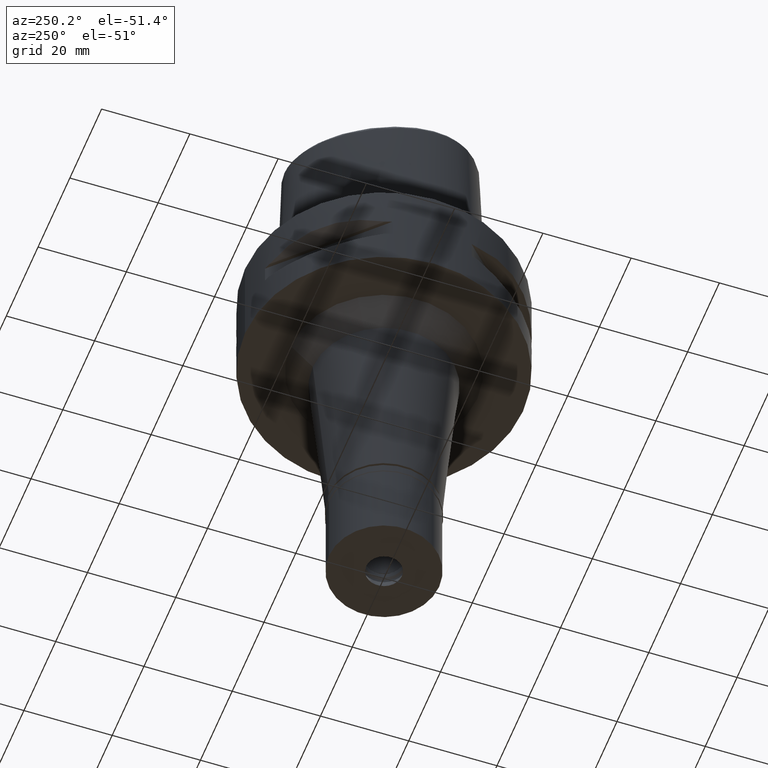
[diagram: clean part render]
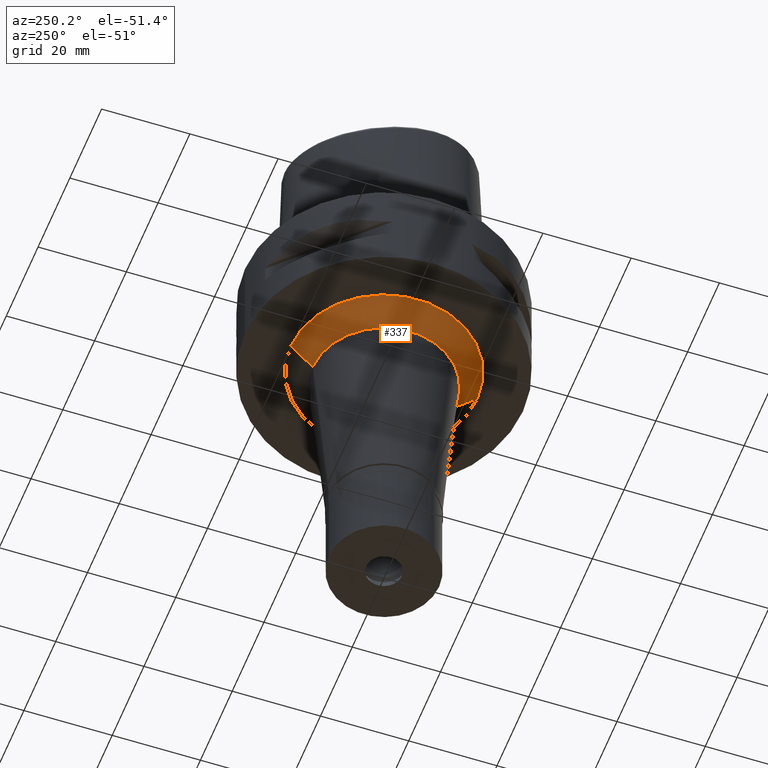
[diagram: same view with one face highlighted and labeled with its STEP entity id]
A machine part, auxiliary view. The second image highlights one B-rep face of the part: STEP entity #337.
In plain terms, the highlighted conical surface has half-angle 45 deg.
Its self-contained STEP definition (entity closure, byte-faithful):
#39 = DIRECTION ( 'NONE',  ( 0.0000000000000000000, 0.0000000000000000000, -1.000000000000000000 ) ) ;
#135 = CARTESIAN_POINT ( 'NONE',  ( 0.0000000000000000000, 0.0000000000000000000, -24.50000000000000000 ) ) ;
#162 = CARTESIAN_POINT ( 'NONE',  ( 0.0000000000000000000, 21.14827726903000027, -22.00000000000000000 ) ) ;
#181 = FACE_OUTER_BOUND ( 'NONE', #4765, .T. ) ;
#337 = ADVANCED_FACE ( 'NONE', ( #181 ), #556, .T. ) ;
#394 = ORIENTED_EDGE ( 'NONE', *, *, #1253, .T. ) ;
#435 = ORIENTED_EDGE ( 'NONE', *, *, #2027, .T. ) ;
#556 = CONICAL_SURFACE ( 'NONE', #3413, 18.64827726902999672, 0.7853981633972997312 ) ;
#855 = CARTESIAN_POINT ( 'NONE',  ( 0.0000000000000000000, 16.14827726903000027, -27.00000000000000000 ) ) ;
#885 = DIRECTION ( 'NONE',  ( 0.0000000000000000000, 0.7071067811862974395, -0.7071067811867974839 ) ) ;
#994 = AXIS2_PLACEMENT_3D ( 'NONE', #2402, #39, #3953 ) ;
#1103 = CIRCLE ( 'NONE', #2568, 16.14827726903000027 ) ;
#1253 = EDGE_CURVE ( 'NONE', #2762, #3133, #3779, .T. ) ;
#1722 = VECTOR ( 'NONE', #3427, 1000.000000000000114 ) ;
#1738 = DIRECTION ( 'NONE',  ( 0.0000000000000000000, 0.0000000000000000000, 1.000000000000000000 ) ) ;
#1875 = LINE ( 'NONE', #3128, #1722 ) ;
#2027 = EDGE_CURVE ( 'NONE', #3133, #2750, #1875, .T. ) ;
#2066 = DIRECTION ( 'NONE',  ( 0.0000000000000000000, 1.000000000000000000, 0.0000000000000000000 ) ) ;
#2189 = VERTEX_POINT ( 'NONE', #4206 ) ;
#2402 = CARTESIAN_POINT ( 'NONE',  ( 0.0000000000000000000, 0.0000000000000000000, -22.00000000000000000 ) ) ;
#2419 = CARTESIAN_POINT ( 'NONE',  ( 0.0000000000000000000, -21.14827726903000027, -22.00000000000000000 ) ) ;
#2442 = CARTESIAN_POINT ( 'NONE',  ( 0.0000000000000000000, -21.14827726903000027, -22.00000000000000000 ) ) ;
#2568 = AXIS2_PLACEMENT_3D ( 'NONE', #3077, #3858, #2998 ) ;
#2750 = VERTEX_POINT ( 'NONE', #855 ) ;
#2755 = EDGE_CURVE ( 'NONE', #2762, #2189, #3662, .T. ) ;
#2762 = VERTEX_POINT ( 'NONE', #2442 ) ;
#2998 = DIRECTION ( 'NONE',  ( 0.0000000000000000000, -1.000000000000000000, 0.0000000000000000000 ) ) ;
#3077 = CARTESIAN_POINT ( 'NONE',  ( 0.0000000000000000000, 0.0000000000000000000, -27.00000000000000000 ) ) ;
#3128 = CARTESIAN_POINT ( 'NONE',  ( 0.0000000000000000000, 21.14827726903000027, -22.00000000000000000 ) ) ;
#3133 = VERTEX_POINT ( 'NONE', #162 ) ;
#3353 = ORIENTED_EDGE ( 'NONE', *, *, #2755, .F. ) ;
#3377 = VECTOR ( 'NONE', #885, 1000.000000000000114 ) ;
#3413 = AXIS2_PLACEMENT_3D ( 'NONE', #135, #1738, #2066 ) ;
#3427 = DIRECTION ( 'NONE',  ( 0.0000000000000000000, -0.7071067811862974395, -0.7071067811867974839 ) ) ;
#3662 = LINE ( 'NONE', #2419, #3377 ) ;
#3779 = CIRCLE ( 'NONE', #994, 21.14827726903000027 ) ;
#3858 = DIRECTION ( 'NONE',  ( 0.0000000000000000000, 0.0000000000000000000, -1.000000000000000000 ) ) ;
#3953 = DIRECTION ( 'NONE',  ( 0.0000000000000000000, -1.000000000000000000, 0.0000000000000000000 ) ) ;
#4101 = ORIENTED_EDGE ( 'NONE', *, *, #5026, .F. ) ;
#4206 = CARTESIAN_POINT ( 'NONE',  ( 0.0000000000000000000, -16.14827726903000027, -27.00000000000000000 ) ) ;
#4765 = EDGE_LOOP ( 'NONE', ( #4101, #3353, #394, #435 ) ) ;
#5026 = EDGE_CURVE ( 'NONE', #2189, #2750, #1103, .T. ) ;